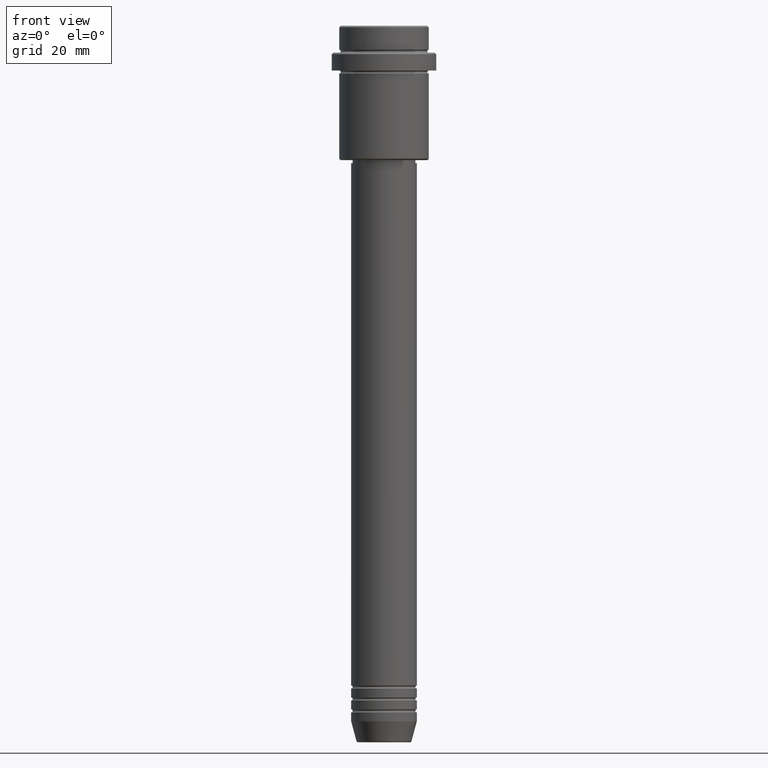
[diagram: clean part render]
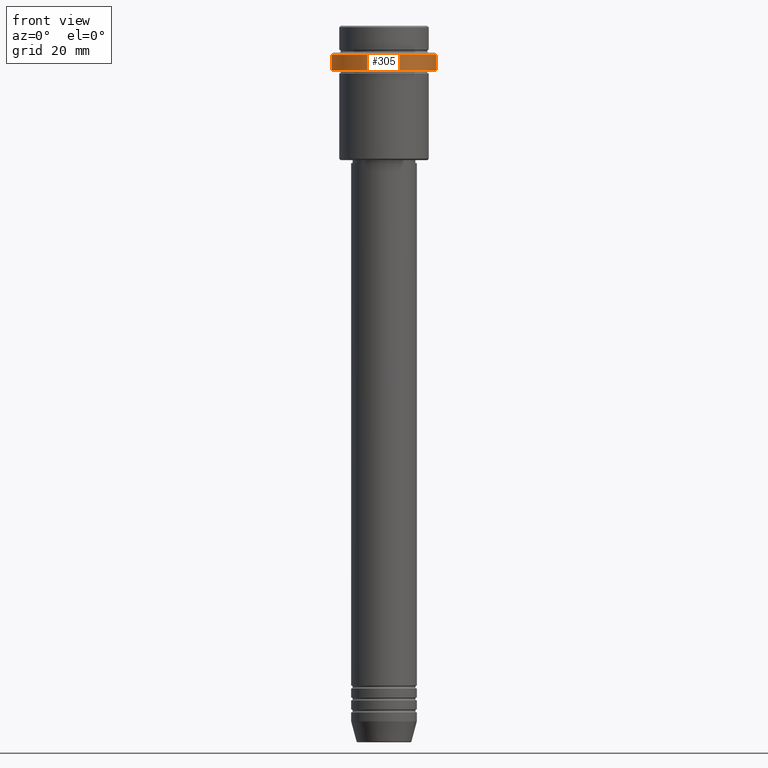
[diagram: same view with one face highlighted and labeled with its STEP entity id]
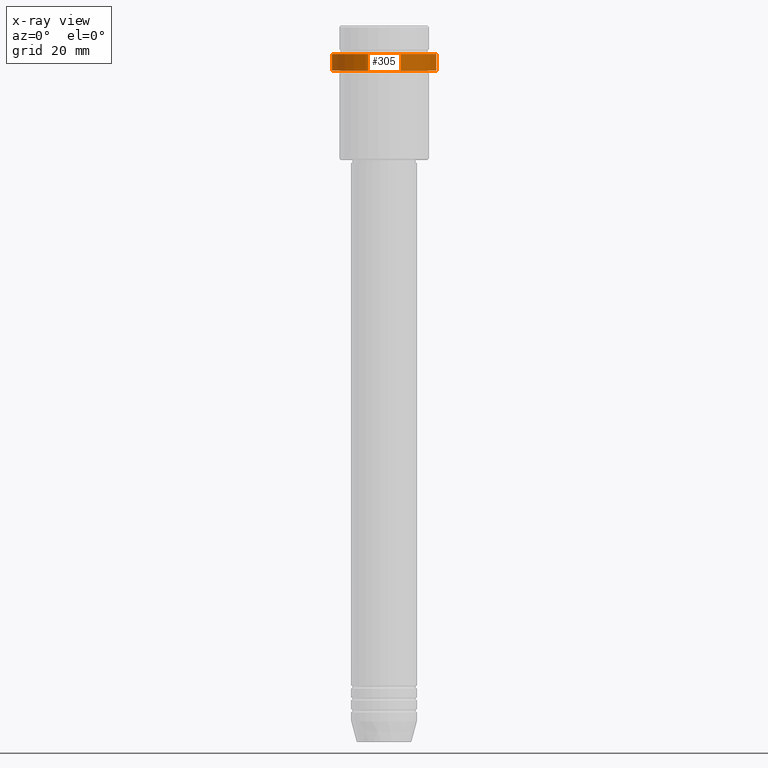
[diagram: x-ray of the same camera — body ghosted, the highlighted face saturated]
A machine part, front view. The second image highlights one B-rep face of the part: STEP entity #305.
The next image is the same camera in x-ray: the body ghosted, the highlighted face saturated — about 0% of this face is hidden behind the body in this view.
In plain terms, the highlighted cylindrical surface (partial cylindrical patch) has radius 17.5 mm, axis along (-0, -0, 1).
Its self-contained STEP definition (entity closure, byte-faithful):
#32 = EDGE_CURVE ( 'NONE', #1289, #914, #168, .T. ) ;
#43 = DIRECTION ( 'NONE',  ( -0.000000000000000000, -0.000000000000000000, 1.000000000000000000 ) ) ;
#71 = CYLINDRICAL_SURFACE ( 'NONE', #685, 17.50000000000000000 ) ;
#102 = EDGE_CURVE ( 'NONE', #383, #966, #1129, .T. ) ;
#150 = VECTOR ( 'NONE', #1147, 1000.000000000000000 ) ;
#168 = CIRCLE ( 'NONE', #609, 17.50000000000000000 ) ;
#183 = CARTESIAN_POINT ( 'NONE',  ( 0.000000000000000000, 0.000000000000000000, -15.00000000000000178 ) ) ;
#240 = VECTOR ( 'NONE', #43, 1000.000000000000000 ) ;
#254 = ORIENTED_EDGE ( 'NONE', *, *, #1040, .T. ) ;
#271 = ORIENTED_EDGE ( 'NONE', *, *, #102, .T. ) ;
#285 = CARTESIAN_POINT ( 'NONE',  ( 17.50000000000000000, 0.000000000000000000, -9.499999999999973355 ) ) ;
#303 = DIRECTION ( 'NONE',  ( -0.000000000000000000, -0.000000000000000000, 1.000000000000000000 ) ) ;
#305 = ADVANCED_FACE ( 'NONE', ( #963 ), #71, .T. ) ;
#383 = VERTEX_POINT ( 'NONE', #285 ) ;
#433 = CARTESIAN_POINT ( 'NONE',  ( 17.50000000000000000, 0.000000000000000000, 0.000000000000000000 ) ) ;
#459 = DIRECTION ( 'NONE',  ( 1.000000000000000000, 0.000000000000000000, 0.000000000000000000 ) ) ;
#517 = EDGE_LOOP ( 'NONE', ( #869, #1061, #254, #271 ) ) ;
#538 = LINE ( 'NONE', #433, #150 ) ;
#580 = EDGE_CURVE ( 'NONE', #1289, #966, #1357, .T. ) ;
#609 = AXIS2_PLACEMENT_3D ( 'NONE', #183, #303, #1405 ) ;
#680 = CARTESIAN_POINT ( 'NONE',  ( 0.000000000000000000, 0.000000000000000000, -9.499999999999973355 ) ) ;
#685 = AXIS2_PLACEMENT_3D ( 'NONE', #1266, #969, #1298 ) ;
#869 = ORIENTED_EDGE ( 'NONE', *, *, #580, .F. ) ;
#914 = VERTEX_POINT ( 'NONE', #1340 ) ;
#923 = CARTESIAN_POINT ( 'NONE',  ( -17.50000000000000000, 2.143131898507868248E-15, -9.499999999999973355 ) ) ;
#963 = FACE_OUTER_BOUND ( 'NONE', #517, .T. ) ;
#966 = VERTEX_POINT ( 'NONE', #923 ) ;
#969 = DIRECTION ( 'NONE',  ( -0.000000000000000000, -0.000000000000000000, 1.000000000000000000 ) ) ;
#973 = AXIS2_PLACEMENT_3D ( 'NONE', #680, #1210, #459 ) ;
#1040 = EDGE_CURVE ( 'NONE', #914, #383, #538, .T. ) ;
#1061 = ORIENTED_EDGE ( 'NONE', *, *, #32, .T. ) ;
#1100 = CARTESIAN_POINT ( 'NONE',  ( -17.50000000000000000, 2.143131898507868248E-15, -15.00000000000000178 ) ) ;
#1129 = CIRCLE ( 'NONE', #973, 17.50000000000000000 ) ;
#1147 = DIRECTION ( 'NONE',  ( -0.000000000000000000, -0.000000000000000000, 1.000000000000000000 ) ) ;
#1210 = DIRECTION ( 'NONE',  ( 0.000000000000000000, 0.000000000000000000, -1.000000000000000000 ) ) ;
#1232 = CARTESIAN_POINT ( 'NONE',  ( -17.50000000000000000, 2.143131898507868248E-15, 0.000000000000000000 ) ) ;
#1266 = CARTESIAN_POINT ( 'NONE',  ( 0.000000000000000000, 0.000000000000000000, 0.000000000000000000 ) ) ;
#1289 = VERTEX_POINT ( 'NONE', #1100 ) ;
#1298 = DIRECTION ( 'NONE',  ( 1.000000000000000000, 0.000000000000000000, 0.000000000000000000 ) ) ;
#1340 = CARTESIAN_POINT ( 'NONE',  ( 17.50000000000000000, 0.000000000000000000, -15.00000000000000178 ) ) ;
#1357 = LINE ( 'NONE', #1232, #240 ) ;
#1405 = DIRECTION ( 'NONE',  ( 1.000000000000000000, 0.000000000000000000, 0.000000000000000000 ) ) ;